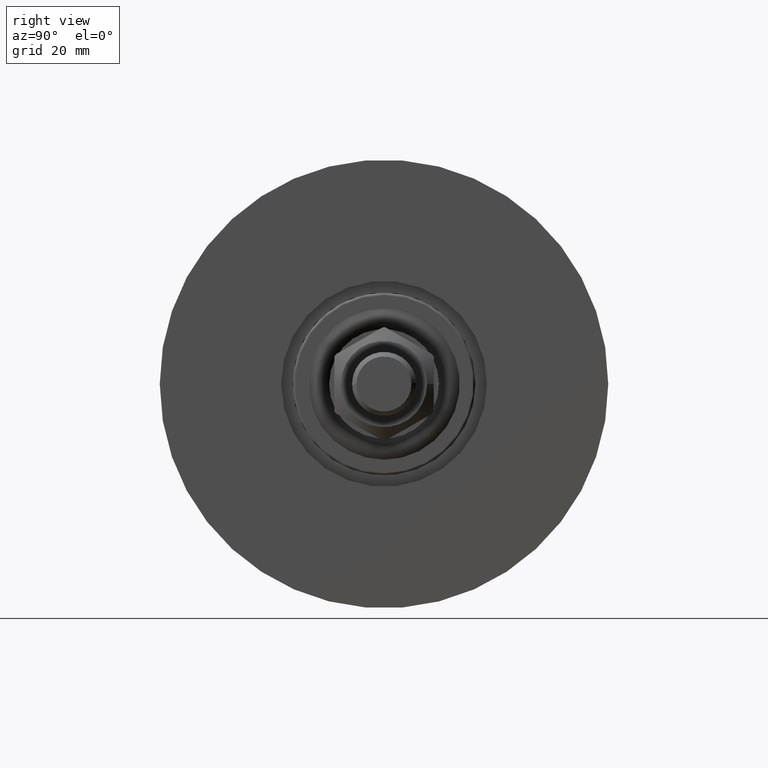
[diagram: clean part render]
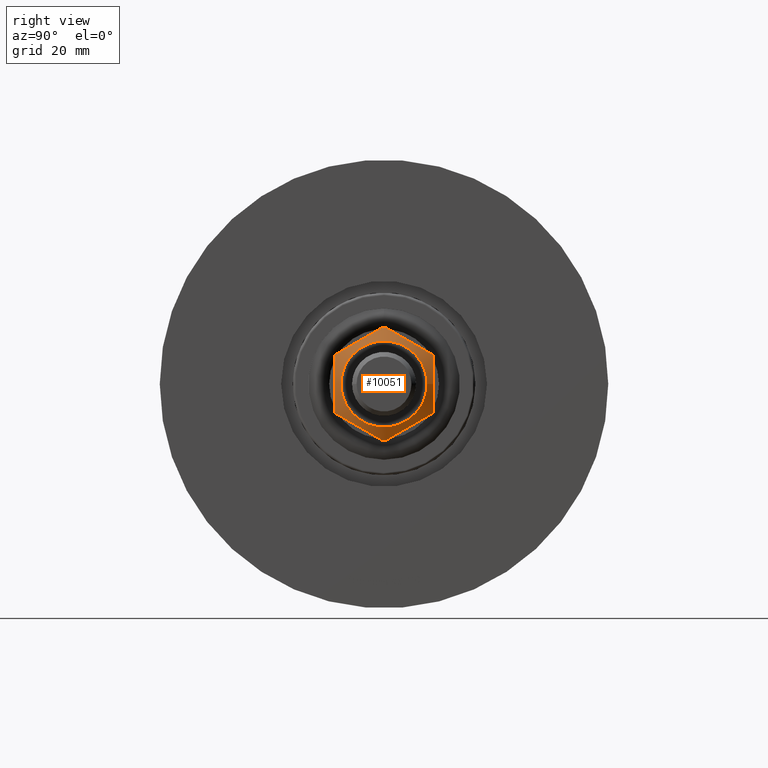
[diagram: same view with one face highlighted and labeled with its STEP entity id]
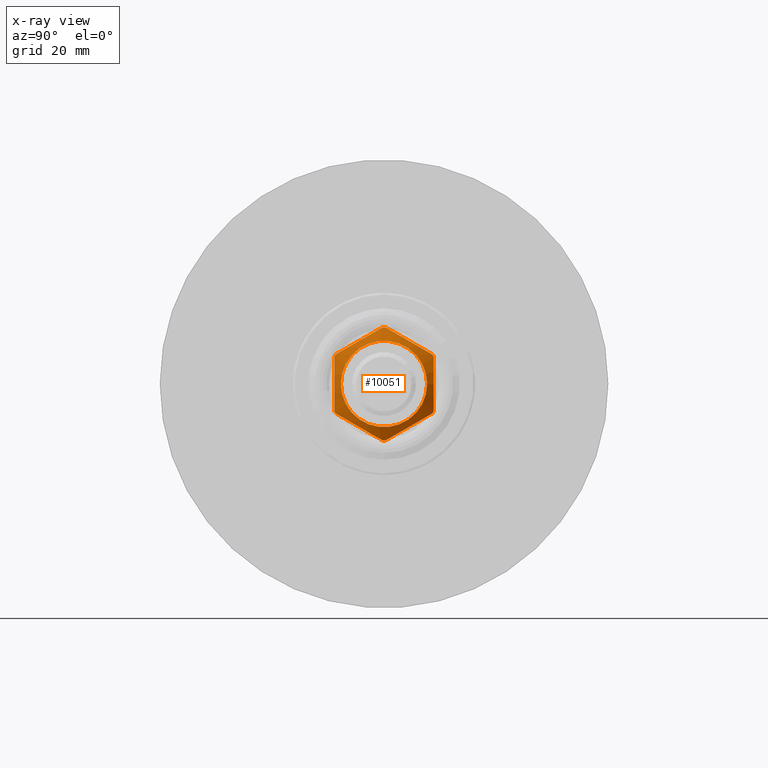
[diagram: x-ray of the same camera — body ghosted, the highlighted face saturated]
A machine part, right view. The second image highlights one B-rep face of the part: STEP entity #10051.
The next image is the same camera in x-ray: the body ghosted, the highlighted face saturated — about 0% of this face is hidden behind the body in this view.
In plain terms, the highlighted conical surface has half-angle 60 deg.
Its self-contained STEP definition (entity closure, byte-faithful):
#11 = CARTESIAN_POINT ( 'NONE',  ( -11.80200942286425736, 1.401500228138186310, -1.308320048192457730 ) ) ;
#22 = CARTESIAN_POINT ( 'NONE',  ( -8.938780974768471665, 0.8594995324929688429, 6.267577193970944371 ) ) ;
#43 = CARTESIAN_POINT ( 'NONE',  ( 3.841093620006202247, 1.200033040104937498, -10.87500000000000178 ) ) ;
#45 = DIRECTION ( 'NONE',  ( 0.000000000000000000, 0.000000000000000000, -1.000000000000000000 ) ) ;
#101 = B_SPLINE_CURVE_WITH_KNOTS ( 'NONE', 3,
 ( #9095, #10218, #10168, #3473, #3521, #6870, #10121, #5788, #6921, #11336, #11, #3376 ),
 .UNSPECIFIED., .F., .F.,
 ( 4, 2, 2, 2, 2, 4 ),
 ( 0.0005945842080459530759, 0.003468188116784418594, 0.006341792025522883895, 0.007778593979892117413, 0.009215395934261350064, 0.01208899984299981883 ),
 .UNSPECIFIED. ) ;
#216 = CONICAL_SURFACE ( 'NONE', #6380, 9.418026266155772319, 1.047197551196603849 ) ;
#273 = CARTESIAN_POINT ( 'NONE',  ( 11.33150797387730080, 1.197382245693979552, 2.123252462872649016 ) ) ;
#282 = CARTESIAN_POINT ( 'NONE',  ( 6.567359312028259843, 1.651713245803267727, 10.37500000000646949 ) ) ;
#298 = CARTESIAN_POINT ( 'NONE',  ( -7.034043109447274844, 1.401500228138187198, 9.566679951807547155 ) ) ;
#323 = CARTESIAN_POINT ( 'NONE',  ( 6.567359312028259843, 1.651713245803267727, 10.37500000000646949 ) ) ;
#473 = ORIENTED_EDGE ( 'NONE', *, *, #14180, .T. ) ;
#529 = B_SPLINE_CURVE_WITH_KNOTS ( 'NONE', 3,
 ( #10567, #12776, #6047, #3931, #613, #4906 ),
 .UNSPECIFIED., .F., .F.,
 ( 4, 2, 4 ),
 ( 8.940560153363745023E-19, 0.0005270963286882887275, 0.001054192657376576588 ),
 .UNSPECIFIED. ) ;
#613 = CARTESIAN_POINT ( 'NONE',  ( 6.481335454924829875, 1.697835028895111842, -10.52399769117265471 ) ) ;
#664 = DIRECTION ( 'NONE',  ( -0.000000000000000000, 1.000000000000000000, -0.000000000000000000 ) ) ;
#743 = CARTESIAN_POINT ( 'NONE',  ( 5.701333908247553595, 1.651713245801263330, -10.87500000000000000 ) ) ;
#767 = ORIENTED_EDGE ( 'NONE', *, *, #2416, .T. ) ;
#991 = CARTESIAN_POINT ( 'NONE',  ( 0.4801215728596254784, 0.8411750961245725300, -10.87500000000000178 ) ) ;
#1028 = CARTESIAN_POINT ( 'NONE',  ( 5.701333908247554483, 1.651713245801264218, 10.87500000000000000 ) ) ;
#1068 = EDGE_CURVE ( 'NONE', #3572, #14144, #9369, .T. ) ;
#1483 = CARTESIAN_POINT ( 'NONE',  ( -9.907615226277277642, 0.8417817293115963384, 4.589507046244722055 ) ) ;
#1529 = CARTESIAN_POINT ( 'NONE',  ( -6.567359312031987528, 1.651713245801262442, 10.37499999999999822 ) ) ;
#1752 = CARTESIAN_POINT ( 'NONE',  ( 12.26869322028328391, 1.651713245803267283, -0.4999999999935340611 ) ) ;
#1792 = CARTESIAN_POINT ( 'NONE',  ( 8.457416494154726294, 0.9324552503827975292, -7.101324931352965386 ) ) ;
#1882 = CARTESIAN_POINT ( 'NONE',  ( 12.26869322028328391, 1.651713245803267283, -0.4999999999935340611 ) ) ;
#1981 = CARTESIAN_POINT ( 'NONE',  ( 7.504544558434241175, 1.197382245693978886, -8.751747537127346988 ) ) ;
#2045 = CARTESIAN_POINT ( 'NONE',  ( -5.701333908250468596, 1.651713245802044483, 10.87500000000000000 ) ) ;
#2138 = EDGE_CURVE ( 'NONE', #13182, #14144, #10017, .T. ) ;
#2156 = CARTESIAN_POINT ( 'NONE',  ( -0.9613115792455494413, 0.8412023501631091804, -10.87499999999999645 ) ) ;
#2382 = EDGE_LOOP ( 'NONE', ( #3137 ) ) ;
#2416 = EDGE_CURVE ( 'NONE', #12121, #11028, #12267, .T. ) ;
#2512 = CARTESIAN_POINT ( 'NONE',  ( -7.504544558434237622, 1.197382245693976222, 8.751747537127345211 ) ) ;
#2535 = CARTESIAN_POINT ( 'NONE',  ( 12.26869322027954823, 1.651713245801264440, 0.4999999999999963363 ) ) ;
#2618 = CARTESIAN_POINT ( 'NONE',  ( 5.701333908247553595, 1.651713245801263330, -10.87500000000000000 ) ) ;
#2643 = CARTESIAN_POINT ( 'NONE',  ( 7.033267992556233139, 1.401915807888984400, 9.568022493644637194 ) ) ;
#2699 = CARTESIAN_POINT ( 'NONE',  ( -5.873324584117805891, 1.697819738311269422, 10.87500000000000178 ) ) ;
#2783 = CARTESIAN_POINT ( 'NONE',  ( 0.000000000000000000, 0.000000000000000000, 0.000000000000000000 ) ) ;
#2843 = EDGE_CURVE ( 'NONE', #3926, #11031, #11043, .T. ) ;
#3038 = CARTESIAN_POINT ( 'NONE',  ( 10.38599579670280981, 0.9179332191946893982, -3.760927592913928308 ) ) ;
#3087 = CARTESIAN_POINT ( 'NONE',  ( -12.26869322028327680, 1.651713245803263286, 0.4999999999935274553 ) ) ;
#3137 = ORIENTED_EDGE ( 'NONE', *, *, #9718, .F. ) ;
#3194 = CARTESIAN_POINT ( 'NONE',  ( -6.049746162853361753, 1.723265229032895141, -10.82872219949836712 ) ) ;
#3211 = CARTESIAN_POINT ( 'NONE',  ( -5.701333908250468596, 1.651713245802044483, -10.87499999999999822 ) ) ;
#3264 = ORIENTED_EDGE ( 'NONE', *, *, #14292, .F. ) ;
#3281 = CARTESIAN_POINT ( 'NONE',  ( -12.35471707738610725, 1.697835028894787213, -0.3510023088283932280 ) ) ;
#3338 = CARTESIAN_POINT ( 'NONE',  ( -10.38599579670280804, 0.9179332191946855124, 3.760927592913925643 ) ) ;
#3343 = CARTESIAN_POINT ( 'NONE',  ( -6.354438399074131993, 1.723101568769043634, -10.65245202876940667 ) ) ;
#3376 = CARTESIAN_POINT ( 'NONE',  ( -12.26869322027954112, 1.651713245801261110, -0.5000000000000013323 ) ) ;
#3460 = DIRECTION ( 'NONE',  ( 0.000000000000000000, -1.000000000000000000, 0.000000000000000000 ) ) ;
#3473 = CARTESIAN_POINT ( 'NONE',  ( -8.450056735608720615, 0.9179332191946873998, -7.114072407086070804 ) ) ;
#3521 = CARTESIAN_POINT ( 'NONE',  ( -8.928437306034252785, 0.8417817293115984478, -6.285492953755275281 ) ) ;
#3572 = VERTEX_POINT ( 'NONE', #6511 ) ;
#3790 = CARTESIAN_POINT ( 'NONE',  ( 12.26869322027954823, 1.651713245801264440, 0.4999999999999963363 ) ) ;
#3844 = CARTESIAN_POINT ( 'NONE',  ( -6.048074869970602840, 1.723101568768978797, 10.82933109476706868 ) ) ;
#3926 = VERTEX_POINT ( 'NONE', #1752 ) ;
#3931 = CARTESIAN_POINT ( 'NONE',  ( 6.353075433863166310, 1.723265229033102086, -10.65359496322821009 ) ) ;
#4026 = CARTESIAN_POINT ( 'NONE',  ( 12.35471707738611258, 1.697835028894791431, 0.3510023088283866777 ) ) ;
#4073 = VERTEX_POINT ( 'NONE', #3087 ) ;
#4083 = CARTESIAN_POINT ( 'NONE',  ( 11.33355493887848375, 1.198355497390708901, -2.119707015489284530 ) ) ;
#4183 = EDGE_CURVE ( 'NONE', #4073, #9307, #7960, .T. ) ;
#4340 = CARTESIAN_POINT ( 'NONE',  ( -4.769813199200886977, 1.401995333033299262, 10.87500000000000000 ) ) ;
#4349 = CARTESIAN_POINT ( 'NONE',  ( 2.411003263741045899, 0.9881332783163607747, -10.87499999999999822 ) ) ;
#4382 = EDGE_CURVE ( 'NONE', #12121, #11341, #101, .T. ) ;
#4392 = CARTESIAN_POINT ( 'NONE',  ( 0.4801215728596229249, 0.8411750961245728631, 10.87499999999999822 ) ) ;
#4424 = CARTESIAN_POINT ( 'NONE',  ( -12.35468855821414813, 1.697819738306868498, 0.3510517054832021366 ) ) ;
#4434 = CARTESIAN_POINT ( 'NONE',  ( -6.567359312028256291, 1.651713245803265950, -10.37500000000646772 ) ) ;
#4483 = CARTESIAN_POINT ( 'NONE',  ( -5.701333908250468596, 1.651713245802044483, -10.87499999999999822 ) ) ;
#4906 = CARTESIAN_POINT ( 'NONE',  ( 6.567359312031991969, 1.651713245801263108, -10.37499999999999822 ) ) ;
#4925 = CARTESIAN_POINT ( 'NONE',  ( 9.897271557543064091, 0.8594995324929729508, 4.607422806029052964 ) ) ;
#4979 = CARTESIAN_POINT ( 'NONE',  ( -6.481335454926037798, 1.697835028894697285, 10.52399769117105954 ) ) ;
#5138 = CARTESIAN_POINT ( 'NONE',  ( 5.873381622460682294, 1.697835028894789877, 10.87500000000000178 ) ) ;
#5189 = CARTESIAN_POINT ( 'NONE',  ( 6.049746162851492137, 1.723265229032758139, 10.82872219949914694 ) ) ;
#5310 = CARTESIAN_POINT ( 'NONE',  ( 6.567359312031991969, 1.651713245801263108, -10.37499999999999822 ) ) ;
#5335 = CARTESIAN_POINT ( 'NONE',  ( 6.354438399073426780, 1.723101568769185299, 10.65245202877012254 ) ) ;
#5359 = ORIENTED_EDGE ( 'NONE', *, *, #1068, .F. ) ;
#5471 = CARTESIAN_POINT ( 'NONE',  ( -1.916950752311184614, 0.9158394121457762438, 10.87499999999999822 ) ) ;
#5572 = CARTESIAN_POINT ( 'NONE',  ( 0.9619148306174961638, 0.8596308977009580188, -10.87499999999999822 ) ) ;
#5704 = CARTESIAN_POINT ( 'NONE',  ( -11.80278453975529906, 1.401915807888980181, 1.306977506355357699 ) ) ;
#5744 = ORIENTED_EDGE ( 'NONE', *, *, #2843, .T. ) ;
#5788 = CARTESIAN_POINT ( 'NONE',  ( -10.37863603815680769, 0.9324552503827955308, -3.773675068647034614 ) ) ;
#5887 = FACE_OUTER_BOUND ( 'NONE', #13179, .T. ) ;
#5897 = CARTESIAN_POINT ( 'NONE',  ( 5.701333908247554483, 1.651713245801264218, 10.87500000000000000 ) ) ;
#6047 = CARTESIAN_POINT ( 'NONE',  ( 6.048074869968735001, 1.723101568768836911, -10.82933109476783962 ) ) ;
#6092 = CARTESIAN_POINT ( 'NONE',  ( 12.26869322028328391, 1.651713245803267283, -0.4999999999935340611 ) ) ;
#6140 = B_SPLINE_CURVE_WITH_KNOTS ( 'NONE', 3,
 ( #323, #2643, #11649, #11502, #11702, #8231, #4925, #8187, #12692, #273, #7046, #2535 ),
 .UNSPECIFIED., .F., .F.,
 ( 4, 2, 2, 2, 2, 4 ),
 ( 0.0005945842080459530759, 0.003468188116784422931, 0.006341792025522895171, 0.007778593979892129556, 0.009215395934261360472, 0.01208899984299982577 ),
 .UNSPECIFIED. ) ;
#6198 = EDGE_CURVE ( 'NONE', #13182, #11031, #6140, .T. ) ;
#6380 = AXIS2_PLACEMENT_3D ( 'NONE', #2783, #664, #13032 ) ;
#6511 = CARTESIAN_POINT ( 'NONE',  ( -5.701333908250468596, 1.651713245802044483, 10.87500000000000000 ) ) ;
#6553 = CARTESIAN_POINT ( 'NONE',  ( 3.841093620006199583, 1.200033040104937943, 10.87500000000000178 ) ) ;
#6590 = CARTESIAN_POINT ( 'NONE',  ( -5.873381622460344786, 1.697835028894686404, -10.87499999999997158 ) ) ;
#6703 = ORIENTED_EDGE ( 'NONE', *, *, #4183, .F. ) ;
#6738 = CARTESIAN_POINT ( 'NONE',  ( -12.40282159671649964, 1.723265229032755474, -0.1751272362727551157 ) ) ;
#6870 = CARTESIAN_POINT ( 'NONE',  ( -9.654148386125651626, 0.8408907253194706222, -5.028524491421286768 ) ) ;
#6921 = CARTESIAN_POINT ( 'NONE',  ( -10.61784407767611249, 0.9867328838611634234, -3.359354590620668102 ) ) ;
#7046 = CARTESIAN_POINT ( 'NONE',  ( 11.80200942286425914, 1.401500228138188753, 1.308320048192456175 ) ) ;
#7525 = CARTESIAN_POINT ( 'NONE',  ( 0.000000000000000000, 0.000000000000000000, -9.418026266155772319 ) ) ;
#7770 = ORIENTED_EDGE ( 'NONE', *, *, #4382, .F. ) ;
#7787 = CARTESIAN_POINT ( 'NONE',  ( -12.26869322027954112, 1.651713245801261110, -0.5000000000000013323 ) ) ;
#7960 = B_SPLINE_CURVE_WITH_KNOTS ( 'NONE', 3,
 ( #8165, #5704, #10409, #3338, #1483, #13474, #22, #12337, #10134, #2512, #298, #9345 ),
 .UNSPECIFIED., .F., .F.,
 ( 4, 2, 2, 2, 2, 4 ),
 ( 0.0005945842080459541601, 0.003468188116784419461, 0.006341792025522884763, 0.007778593979892120015, 0.009215395934261353533, 0.01208899984299982751 ),
 .UNSPECIFIED. ) ;
#8083 = VERTEX_POINT ( 'NONE', #13025 ) ;
#8165 = CARTESIAN_POINT ( 'NONE',  ( -12.26869322028327680, 1.651713245803263286, 0.4999999999935274553 ) ) ;
#8181 = CIRCLE ( 'NONE', #10711, 9.418026266155772319 ) ;
#8186 = B_SPLINE_CURVE_WITH_KNOTS ( 'NONE', 3,
 ( #10130, #4424, #8964, #6738, #3281, #7787 ),
 .UNSPECIFIED., .F., .F.,
 ( 4, 2, 4 ),
 ( 8.267798243258249044E-15, 0.0005270963286924612795, 0.001054192657376654650 ),
 .UNSPECIFIED. ) ;
#8187 = CARTESIAN_POINT ( 'NONE',  ( 10.37863603815681657, 0.9324552503827988614, 3.773675068647031061 ) ) ;
#8231 = CARTESIAN_POINT ( 'NONE',  ( 9.654148386125656955, 0.8408907253194727316, 5.028524491421286768 ) ) ;
#8334 = CARTESIAN_POINT ( 'NONE',  ( -6.567359312028256291, 1.651713245803265950, -10.37500000000646772 ) ) ;
#8366 = CARTESIAN_POINT ( 'NONE',  ( 12.40282159671651208, 1.723265229032759693, 0.1751272362727493426 ) ) ;
#8486 = B_SPLINE_CURVE_WITH_KNOTS ( 'NONE', 3,
 ( #1882, #13175, #4083, #3038, #13231, #14374, #12043, #1792, #11890, #1981, #9695, #5310 ),
 .UNSPECIFIED., .F., .F.,
 ( 4, 2, 2, 2, 2, 4 ),
 ( 0.0005945842080459537264, 0.003468188116784416859, 0.006341792025522879558, 0.007778593979892115678, 0.009215395934261350064, 0.01208899984299981883 ),
 .UNSPECIFIED. ) ;
#8938 = CARTESIAN_POINT ( 'NONE',  ( 1.928106376805320377, 0.9331066348309308145, -10.87500000000000178 ) ) ;
#8964 = CARTESIAN_POINT ( 'NONE',  ( -12.40251326904671281, 1.723101568769182412, 0.1768790659958412170 ) ) ;
#8987 = CARTESIAN_POINT ( 'NONE',  ( -3.818914397386062198, 1.195854406471144715, -10.87500000000000000 ) ) ;
#9095 = CARTESIAN_POINT ( 'NONE',  ( -6.567359312028256291, 1.651713245803265950, -10.37500000000646772 ) ) ;
#9307 = VERTEX_POINT ( 'NONE', #1529 ) ;
#9341 = VERTEX_POINT ( 'NONE', #7525 ) ;
#9345 = CARTESIAN_POINT ( 'NONE',  ( -6.567359312031987528, 1.651713245801262442, 10.37499999999999822 ) ) ;
#9369 = B_SPLINE_CURVE_WITH_KNOTS ( 'NONE', 3,
 ( #2045, #4340, #14488, #5471, #13339, #4392, #9901, #13298, #12108, #6553, #12249, #1028 ),
 .UNSPECIFIED., .F., .F.,
 ( 4, 2, 2, 2, 2, 4 ),
 ( 0.01166930564173792283, 0.01454611276641795681, 0.01742291989109798905, 0.01886132345343800865, 0.02029972701577802130, 0.02317653414045805702 ),
 .UNSPECIFIED. ) ;
#9427 = CARTESIAN_POINT ( 'NONE',  ( 6.481363974097386738, 1.697819738306871162, 10.52394829451679392 ) ) ;
#9451 = ORIENTED_EDGE ( 'NONE', *, *, #6198, .F. ) ;
#9695 = CARTESIAN_POINT ( 'NONE',  ( 7.034043109447277509, 1.401500228138188753, -9.566679951807541826 ) ) ;
#9712 = B_SPLINE_CURVE_WITH_KNOTS ( 'NONE', 3,
 ( #13929, #2699, #3844, #11703, #4979, #12843 ),
 .UNSPECIFIED., .F., .F.,
 ( 4, 2, 4 ),
 ( 2.833363416492023246E-15, 0.0005270963286896992745, 0.001054192657376565312 ),
 .UNSPECIFIED. ) ;
#9718 = EDGE_CURVE ( 'NONE', #9341, #9341, #8181, .T. ) ;
#9901 = CARTESIAN_POINT ( 'NONE',  ( 0.9619148306174902796, 0.8596308977009585739, 10.87500000000000000 ) ) ;
#9992 = CARTESIAN_POINT ( 'NONE',  ( -6.481363974097626546, 1.697819738306739046, -10.52394829451637293 ) ) ;
#10017 = B_SPLINE_CURVE_WITH_KNOTS ( 'NONE', 3,
 ( #282, #9427, #5335, #5189, #5138, #11867 ),
 .UNSPECIFIED., .F., .F.,
 ( 4, 2, 4 ),
 ( 8.269528747556147099E-15, 0.0005270963286924643153, 0.001054192657376658987 ),
 .UNSPECIFIED. ) ;
#10051 = ADVANCED_FACE ( 'NONE', ( #11497, #5887 ), #216, .T. ) ;
#10062 = CARTESIAN_POINT ( 'NONE',  ( -1.916950752311183503, 0.9158394121457759107, -10.87500000000000000 ) ) ;
#10121 = CARTESIAN_POINT ( 'NONE',  ( -9.897271557543058762, 0.8594995324929699532, -4.607422806029053852 ) ) ;
#10130 = CARTESIAN_POINT ( 'NONE',  ( -12.26869322028327680, 1.651713245803263286, 0.4999999999935274553 ) ) ;
#10134 = CARTESIAN_POINT ( 'NONE',  ( -8.218208454635423266, 0.9867328838611627573, 7.515645409379331454 ) ) ;
#10168 = CARTESIAN_POINT ( 'NONE',  ( -7.502497593433052003, 1.198355497390707125, -8.755292984510717247 ) ) ;
#10218 = CARTESIAN_POINT ( 'NONE',  ( -7.033267992556232251, 1.401915807888982624, -9.568022493644638971 ) ) ;
#10225 = EDGE_CURVE ( 'NONE', #4073, #11341, #8186, .T. ) ;
#10260 = ORIENTED_EDGE ( 'NONE', *, *, #2138, .T. ) ;
#10340 = CARTESIAN_POINT ( 'NONE',  ( -5.701333908250468596, 1.651713245802044483, -10.87499999999999822 ) ) ;
#10409 = CARTESIAN_POINT ( 'NONE',  ( -11.33355493887848020, 1.198355497390704905, 2.119707015489279645 ) ) ;
#10522 = ORIENTED_EDGE ( 'NONE', *, *, #13703, .T. ) ;
#10567 = CARTESIAN_POINT ( 'NONE',  ( 5.701333908247553595, 1.651713245801263330, -10.87500000000000000 ) ) ;
#10711 = AXIS2_PLACEMENT_3D ( 'NONE', #11369, #3460, #45 ) ;
#10769 = CARTESIAN_POINT ( 'NONE',  ( -12.26869322027954112, 1.651713245801261110, -0.5000000000000013323 ) ) ;
#10828 = B_SPLINE_CURVE_WITH_KNOTS ( 'NONE', 3,
 ( #743, #11270, #43, #4349, #8938, #5572, #991, #2156, #10062, #8987, #13450, #3211 ),
 .UNSPECIFIED., .F., .F.,
 ( 4, 2, 2, 2, 2, 4 ),
 ( 0.02868339401216551607, 0.03156421012868809717, 0.03300461818694939292, 0.03444502624521068868, 0.03732584236173327324, 0.04020665847825585781 ),
 .UNSPECIFIED. ) ;
#11028 = VERTEX_POINT ( 'NONE', #10340 ) ;
#11031 = VERTEX_POINT ( 'NONE', #3790 ) ;
#11043 = B_SPLINE_CURVE_WITH_KNOTS ( 'NONE', 3,
 ( #6092, #12972, #14116, #8366, #4026, #13024 ),
 .UNSPECIFIED., .F., .F.,
 ( 4, 2, 4 ),
 ( 8.267938729721279106E-15, 0.0005270963286924619301, 0.001054192657376655951 ),
 .UNSPECIFIED. ) ;
#11270 = CARTESIAN_POINT ( 'NONE',  ( 4.777236938173024861, 1.403985455832699403, -10.87500000000000533 ) ) ;
#11336 = CARTESIAN_POINT ( 'NONE',  ( -11.33150797387729369, 1.197382245693976222, -2.123252462872651680 ) ) ;
#11341 = VERTEX_POINT ( 'NONE', #10769 ) ;
#11369 = CARTESIAN_POINT ( 'NONE',  ( 0.000000000000000000, 0.000000000000000000, 0.000000000000000000 ) ) ;
#11497 = FACE_BOUND ( 'NONE', #2382, .T. ) ;
#11502 = CARTESIAN_POINT ( 'NONE',  ( 8.450056735608727720, 0.9179332191946890651, 7.114072407086071692 ) ) ;
#11649 = CARTESIAN_POINT ( 'NONE',  ( 7.502497593433057332, 1.198355497390708457, 8.755292984510717247 ) ) ;
#11702 = CARTESIAN_POINT ( 'NONE',  ( 8.928437306034254561, 0.8417817293116001132, 6.285492953755277057 ) ) ;
#11703 = CARTESIAN_POINT ( 'NONE',  ( -6.353075433863931032, 1.723265229032958201, 10.65359496322745692 ) ) ;
#11867 = CARTESIAN_POINT ( 'NONE',  ( 5.701333908247554483, 1.651713245801264218, 10.87500000000000000 ) ) ;
#11890 = CARTESIAN_POINT ( 'NONE',  ( 8.218208454635426818, 0.9867328838611660879, -7.515645409379333231 ) ) ;
#12043 = CARTESIAN_POINT ( 'NONE',  ( 8.938780974768478771, 0.8594995324929722846, -6.267577193970945260 ) ) ;
#12108 = CARTESIAN_POINT ( 'NONE',  ( 2.411003263741043234, 0.9881332783163612188, 10.87500000000000000 ) ) ;
#12121 = VERTEX_POINT ( 'NONE', #8334 ) ;
#12249 = CARTESIAN_POINT ( 'NONE',  ( 4.777236938173020420, 1.403985455832699403, 10.87500000000000000 ) ) ;
#12267 = B_SPLINE_CURVE_WITH_KNOTS ( 'NONE', 3,
 ( #4434, #9992, #3343, #3194, #6590, #4483 ),
 .UNSPECIFIED., .F., .F.,
 ( 4, 2, 4 ),
 ( 8.269528747556147099E-15, 0.0005270963286909737542, 0.001054192657373677865 ),
 .UNSPECIFIED. ) ;
#12337 = CARTESIAN_POINT ( 'NONE',  ( -8.457416494154715636, 0.9324552503827948646, 7.101324931352966274 ) ) ;
#12465 = VERTEX_POINT ( 'NONE', #2618 ) ;
#12692 = CARTESIAN_POINT ( 'NONE',  ( 10.61784407767611427, 0.9867328838611665320, 3.359354590620665437 ) ) ;
#12776 = CARTESIAN_POINT ( 'NONE',  ( 5.873324584118241098, 1.697819738310603954, -10.87500000000000178 ) ) ;
#12843 = CARTESIAN_POINT ( 'NONE',  ( -6.567359312031987528, 1.651713245801262442, 10.37499999999999822 ) ) ;
#12972 = CARTESIAN_POINT ( 'NONE',  ( 12.35468855821415524, 1.697819738306872273, -0.3510517054832086870 ) ) ;
#13024 = CARTESIAN_POINT ( 'NONE',  ( 12.26869322027954823, 1.651713245801264440, 0.4999999999999963363 ) ) ;
#13025 = CARTESIAN_POINT ( 'NONE',  ( 6.567359312031991969, 1.651713245801263108, -10.37499999999999822 ) ) ;
#13032 = DIRECTION ( 'NONE',  ( 0.000000000000000000, 0.000000000000000000, -1.000000000000000000 ) ) ;
#13175 = CARTESIAN_POINT ( 'NONE',  ( 11.80278453975530617, 1.401915807888984622, -1.306977506355363694 ) ) ;
#13179 = EDGE_LOOP ( 'NONE', ( #13628, #473, #3264, #5744, #9451, #10260, #5359, #10522, #6703, #13889, #7770, #767 ) ) ;
#13182 = VERTEX_POINT ( 'NONE', #13835 ) ;
#13231 = CARTESIAN_POINT ( 'NONE',  ( 9.907615226277286524, 0.8417817293116000021, -4.589507046244723831 ) ) ;
#13298 = CARTESIAN_POINT ( 'NONE',  ( 1.928106376805314159, 0.9331066348309313696, 10.87500000000000178 ) ) ;
#13339 = CARTESIAN_POINT ( 'NONE',  ( -0.9613115792455523279, 0.8412023501631098465, 10.87499999999999822 ) ) ;
#13431 = EDGE_CURVE ( 'NONE', #12465, #11028, #10828, .T. ) ;
#13450 = CARTESIAN_POINT ( 'NONE',  ( -4.769813199200882536, 1.401995333033297264, -10.87500000000000178 ) ) ;
#13474 = CARTESIAN_POINT ( 'NONE',  ( -9.181904146185880577, 0.8408907253194688458, 5.846475508578708791 ) ) ;
#13628 = ORIENTED_EDGE ( 'NONE', *, *, #13431, .F. ) ;
#13703 = EDGE_CURVE ( 'NONE', #3572, #9307, #9712, .T. ) ;
#13835 = CARTESIAN_POINT ( 'NONE',  ( 6.567359312028259843, 1.651713245803267727, 10.37500000000646949 ) ) ;
#13889 = ORIENTED_EDGE ( 'NONE', *, *, #10225, .T. ) ;
#13929 = CARTESIAN_POINT ( 'NONE',  ( -5.701333908250468596, 1.651713245802044483, 10.87500000000000000 ) ) ;
#14116 = CARTESIAN_POINT ( 'NONE',  ( 12.40251326904671636, 1.723101568769186409, -0.1768790659958472400 ) ) ;
#14144 = VERTEX_POINT ( 'NONE', #5897 ) ;
#14180 = EDGE_CURVE ( 'NONE', #12465, #8083, #529, .T. ) ;
#14292 = EDGE_CURVE ( 'NONE', #3926, #8083, #8486, .T. ) ;
#14374 = CARTESIAN_POINT ( 'NONE',  ( 9.181904146185889459, 0.8408907253194721765, -5.846475508578711455 ) ) ;
#14488 = CARTESIAN_POINT ( 'NONE',  ( -3.818914397386063975, 1.195854406471145381, 10.87500000000000000 ) ) ;